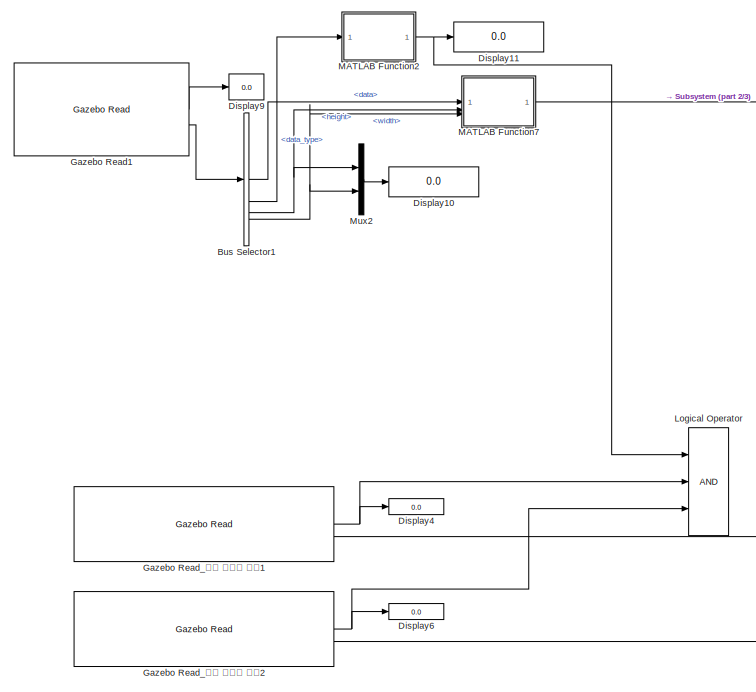
[diagram: root canvas - part 1/3, top center region]
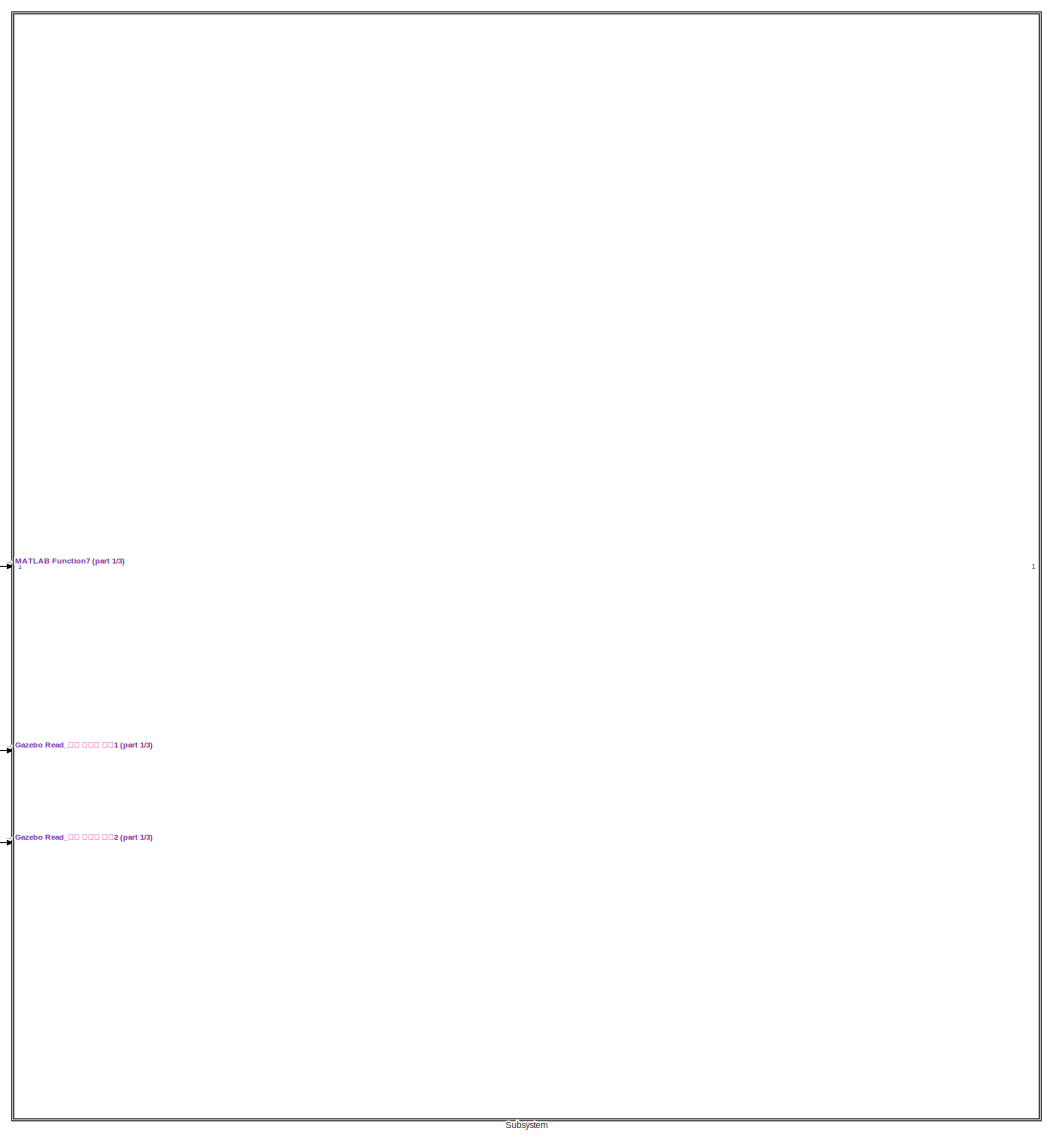
[diagram: root canvas - part 2/3, right side, full height]
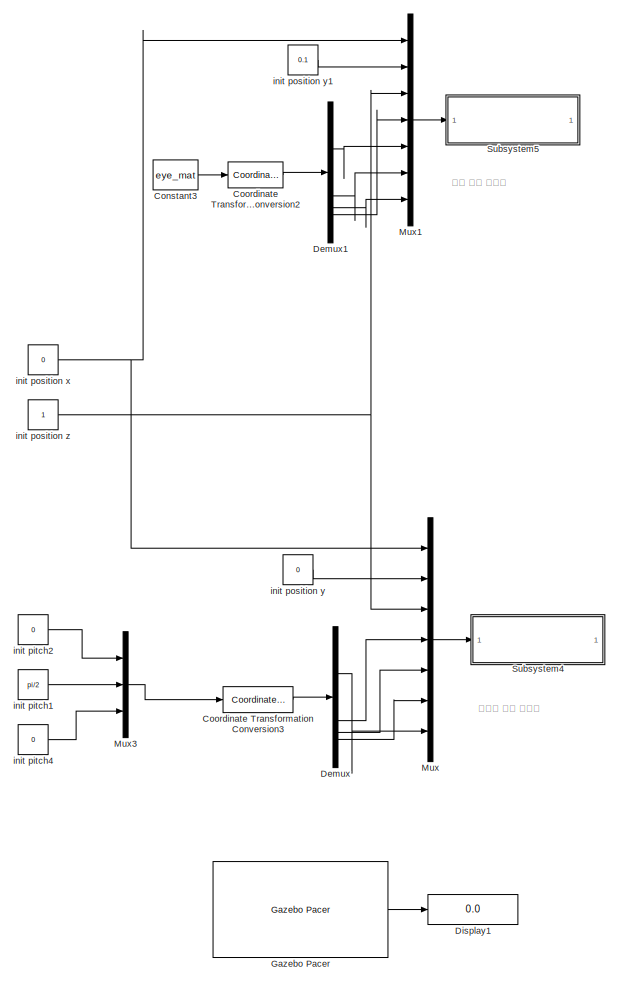
[diagram: root canvas - part 3/3, left side, full height]
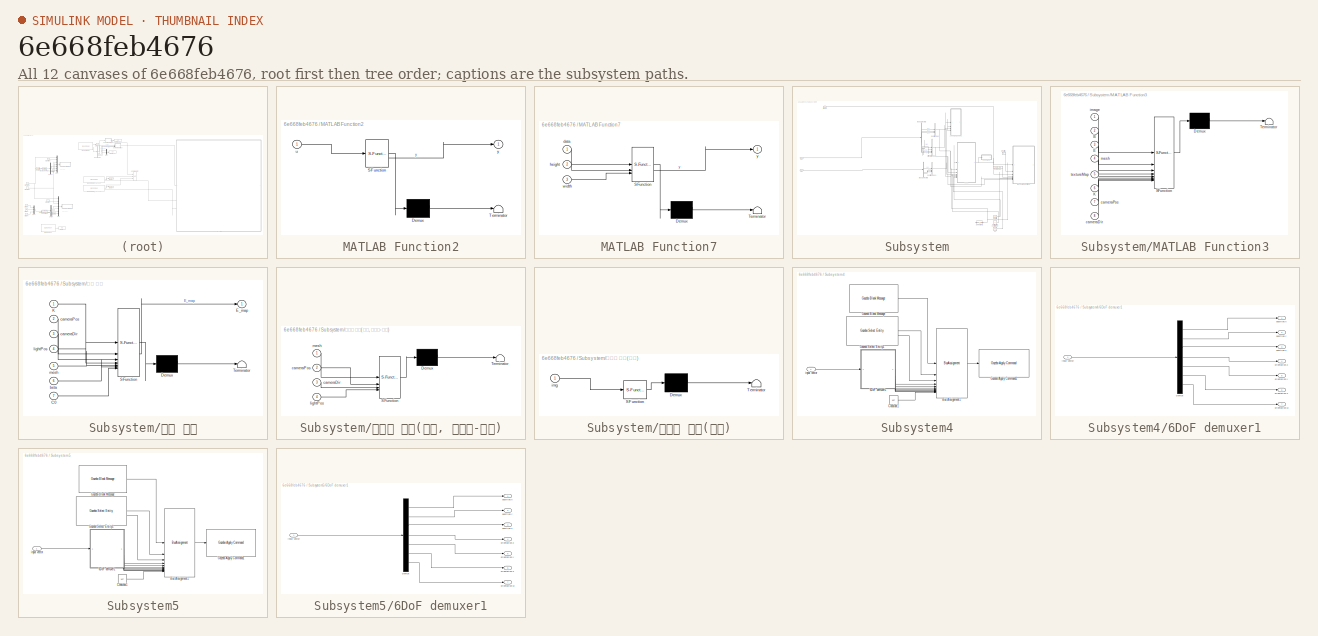
[diagram: thumbnail index - all 12 canvases of the model, root first then tree order]
MODEL slx_6e668feb4676
KIND model
CONFIG AbsTol = auto
CONFIG EnableMultiTasking = off
CONFIG FixedStep = auto
CONFIG MaxStep = auto
CONFIG MinStep = auto
CONFIG RelTol = 1e-3
CONFIG SampleTimeConstraint = Unconstrained
CONFIG SolverName = VariableStepAuto
CONFIG StartTime = 0.0
CONFIG StopTime = 2
BLOCK [BusSelector] Bus Selector1
  OutputSignals = data,data_type,height,width
BLOCK [Constant] Constant3
  Value = eye_mat
BLOCK [Reference] Coordinate Transformation Conversion2  REF=robotcorelib/Coordinate Transformation Conversion
  SourceBlock = robotcorelib/Coordinate Transformation Conversion
  SourceType = robotics.slcore.internal.block.CoordinateTransformationConversion
BLOCK [Reference] Coordinate Transformation Conversion3  REF=robotcorelib/Coordinate Transformation Conversion
  SourceBlock = robotcorelib/Coordinate Transformation Conversion
  SourceType = robotics.slcore.internal.block.CoordinateTransformationConversion
BLOCK [Demux] Demux
BLOCK [Demux] Demux1
BLOCK [Display] Display1
  Decimation = 1
BLOCK [Display] Display10
  Decimation = 1
BLOCK [Display] Display11
  Decimation = 1
BLOCK [Display] Display4
  Decimation = 1
BLOCK [Display] Display6
  Decimation = 1
BLOCK [Display] Display9
  Decimation = 1
BLOCK [Reference] Gazebo Pacer  REF=robotgazebolib/Gazebo Pacer
  SourceBlock = robotgazebolib/Gazebo Pacer
  SourceType = Gazebo Pacer
BLOCK [Reference] Gazebo Read1  REF=robotgazebolib/Gazebo Read
  SourceBlock = robotgazebolib/Gazebo Read
  SourceType = Gazebo Read
BLOCK [Reference] Gazebo Read_현재 카메라 자세1  REF=robotgazebolib/Gazebo Read
  SourceBlock = robotgazebolib/Gazebo Read
  SourceType = Gazebo Read
BLOCK [Reference] Gazebo Read_현재 카메라 자세2  REF=robotgazebolib/Gazebo Read
  SourceBlock = robotgazebolib/Gazebo Read
  SourceType = Gazebo Read
BLOCK [Logic] Logical Operator
  AllPortsSameDT = off
  Inputs = 3
  OutDataTypeStr = boolean
BLOCK [SubSystem] MATLAB Function2
  ErrorFcn = Stateflow.Translate.translate
  PermitHierarchicalResolution = ExplicitOnly
  SFBlockType = MATLAB Function
  TreatAsAtomicUnit = on
BLOCK [Demux] MATLAB Function2/ Demux 
  Outputs = 1
BLOCK [S-Function] MATLAB Function2/ SFunction 
  EnableBusSupport = on
  FunctionName = sf_sfun
  PortCounts = [1 2]
  SFcnIsStateOwnerBlock = off
  SFunctionDeploymentMode = off
  Tag = Stateflow S-Function 6
BLOCK [Terminator] MATLAB Function2/ Terminator 
BLOCK [Inport] MATLAB Function2/u
BLOCK [Outport] MATLAB Function2/y
BLOCK [SubSystem] MATLAB Function7
  ErrorFcn = Stateflow.Translate.translate
  PermitHierarchicalResolution = ExplicitOnly
  SFBlockType = MATLAB Function
  TreatAsAtomicUnit = on
BLOCK [Demux] MATLAB Function7/ Demux 
  Outputs = 1
BLOCK [S-Function] MATLAB Function7/ SFunction 
  EnableBusSupport = on
  FunctionName = sf_sfun
  PortCounts = [3 2]
  SFcnIsStateOwnerBlock = off
  SFunctionDeploymentMode = off
  Tag = Stateflow S-Function 15
BLOCK [Terminator] MATLAB Function7/ Terminator 
BLOCK [Inport] MATLAB Function7/data
BLOCK [Inport] MATLAB Function7/height
  Port = 2
BLOCK [Inport] MATLAB Function7/width
  Port = 3
BLOCK [Outport] MATLAB Function7/y
BLOCK [Mux] Mux
  DisplayOption = bar
  Inputs = 7
BLOCK [Mux] Mux1
  DisplayOption = bar
  Inputs = 7
BLOCK [Mux] Mux2
  DisplayOption = bar
  Inputs = 2
BLOCK [Mux] Mux3
  DisplayOption = bar
  Inputs = 3
BLOCK [SubSystem] Subsystem
BLOCK [BusSelector] Subsystem/Bus Selector2
  OutputSignals = position.x,position.y,position.z,orientation.x,orientation.y,orientation.z,orientation.w
BLOCK [BusSelector] Subsystem/Bus Selector3
  OutputSignals = position.x,position.y,position.z
BLOCK [Constant] Subsystem/C0
  Value = 24000
BLOCK [Constant] Subsystem/Constant1
  OutDataTypeStr = Bus: slBus1
  Value = mesh_data
BLOCK [Inport] Subsystem/In2
  Port = 2
BLOCK [Inport] Subsystem/In3
  Port = 3
BLOCK [Constant] Subsystem/K matrix
  Value = K
BLOCK [Constant] Subsystem/K matrix1
  Value = B
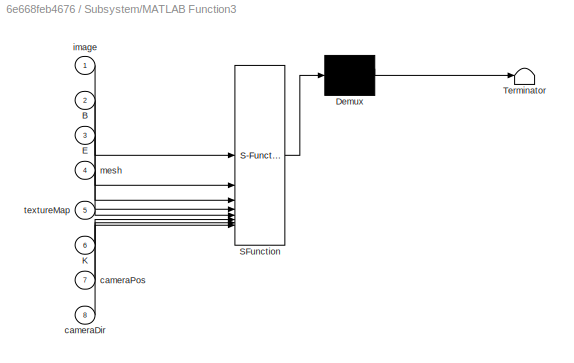
BLOCK [SubSystem] Subsystem/MATLAB Function3
  ErrorFcn = Stateflow.Translate.translate
  PermitHierarchicalResolution = ExplicitOnly
  SFBlockType = MATLAB Function
  TreatAsAtomicUnit = on
BLOCK [Demux] Subsystem/MATLAB Function3/ Demux 
  Outputs = 1
BLOCK [S-Function] Subsystem/MATLAB Function3/ SFunction 
  EnableBusSupport = on
  FunctionName = sf_sfun
  PortCounts = [8 1]
  SFcnIsStateOwnerBlock = off
  SFunctionDeploymentMode = off
  Tag = Stateflow S-Function 13
BLOCK [Terminator] Subsystem/MATLAB Function3/ Terminator 
BLOCK [Inport] Subsystem/MATLAB Function3/B
  Port = 2
BLOCK [Inport] Subsystem/MATLAB Function3/E
  Port = 3
BLOCK [Inport] Subsystem/MATLAB Function3/K
  Port = 6
BLOCK [Inport] Subsystem/MATLAB Function3/cameraDir
  Port = 8
BLOCK [Inport] Subsystem/MATLAB Function3/cameraPos
  Port = 7
BLOCK [Inport] Subsystem/MATLAB Function3/image
BLOCK [Inport] Subsystem/MATLAB Function3/mesh
  Port = 4
BLOCK [Inport] Subsystem/MATLAB Function3/textureMap
  Port = 5
BLOCK [Constant] Subsystem/extinction coefficient
  Value = 5
BLOCK [Inport] Subsystem/image
BLOCK [BusCreator] Subsystem/oritentation bus
  DisplayOption = bar
  InheritFromInputs = on
  Inputs = 4
BLOCK [BusCreator] Subsystem/position bus
  DisplayOption = bar
  InheritFromInputs = on
  Inputs = 3
BLOCK [BusCreator] Subsystem/position bus1
  DisplayOption = bar
  InheritFromInputs = on
  Inputs = 3
BLOCK [Constant] Subsystem/texture map
  Value = texture_map
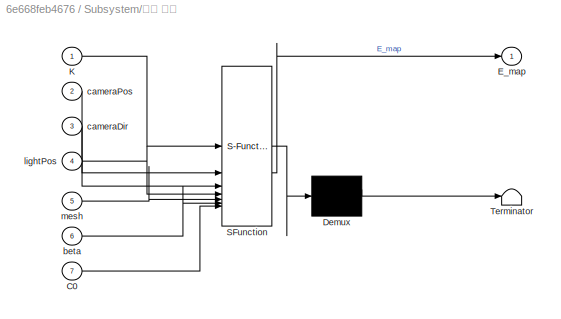
BLOCK [SubSystem] Subsystem/계산 함수
  ErrorFcn = Stateflow.Translate.translate
  PermitHierarchicalResolution = ExplicitOnly
  SFBlockType = MATLAB Function
  TreatAsAtomicUnit = on
BLOCK [Demux] Subsystem/계산 함수/ Demux 
  Outputs = 1
BLOCK [S-Function] Subsystem/계산 함수/ SFunction 
  EnableBusSupport = on
  FunctionName = sf_sfun
  PortCounts = [7 2]
  SFcnIsStateOwnerBlock = off
  SFunctionDeploymentMode = off
  Tag = Stateflow S-Function 3
BLOCK [Terminator] Subsystem/계산 함수/ Terminator 
BLOCK [Inport] Subsystem/계산 함수/C0
  Port = 7
BLOCK [Outport] Subsystem/계산 함수/E_map
BLOCK [Inport] Subsystem/계산 함수/K
BLOCK [Inport] Subsystem/계산 함수/beta
  Port = 6
BLOCK [Inport] Subsystem/계산 함수/cameraDir
  Port = 3
BLOCK [Inport] Subsystem/계산 함수/cameraPos
  Port = 2
BLOCK [Inport] Subsystem/계산 함수/lightPos
  Port = 4
BLOCK [Inport] Subsystem/계산 함수/mesh
  Port = 5
BLOCK [SubSystem] Subsystem/시각화 함수(물체, 카메라-조명)
  ErrorFcn = Stateflow.Translate.translate
  PermitHierarchicalResolution = ExplicitOnly
  SFBlockType = MATLAB Function
  TreatAsAtomicUnit = on
BLOCK [Demux] Subsystem/시각화 함수(물체, 카메라-조명)/ Demux 
  Outputs = 1
BLOCK [S-Function] Subsystem/시각화 함수(물체, 카메라-조명)/ SFunction 
  EnableBusSupport = on
  FunctionName = sf_sfun
  PortCounts = [4 1]
  SFcnIsStateOwnerBlock = off
  SFunctionDeploymentMode = off
  Tag = Stateflow S-Function 1
BLOCK [Terminator] Subsystem/시각화 함수(물체, 카메라-조명)/ Terminator 
BLOCK [Inport] Subsystem/시각화 함수(물체, 카메라-조명)/cameraDir
  Port = 3
BLOCK [Inport] Subsystem/시각화 함수(물체, 카메라-조명)/cameraPos
  Port = 2
BLOCK [Inport] Subsystem/시각화 함수(물체, 카메라-조명)/lightPos
  Port = 4
BLOCK [Inport] Subsystem/시각화 함수(물체, 카메라-조명)/mesh
BLOCK [SubSystem] Subsystem/시각화 함수(행렬)
  Commented = on
  ErrorFcn = Stateflow.Translate.translate
  PermitHierarchicalResolution = ExplicitOnly
  SFBlockType = MATLAB Function
  TreatAsAtomicUnit = on
BLOCK [Demux] Subsystem/시각화 함수(행렬)/ Demux 
  Outputs = 1
BLOCK [S-Function] Subsystem/시각화 함수(행렬)/ SFunction 
  EnableBusSupport = on
  FunctionName = sf_sfun
  PortCounts = [1 1]
  SFcnIsStateOwnerBlock = off
  SFunctionDeploymentMode = off
  Tag = Stateflow S-Function 2
BLOCK [Terminator] Subsystem/시각화 함수(행렬)/ Terminator 
BLOCK [Inport] Subsystem/시각화 함수(행렬)/img
BLOCK [SubSystem] Subsystem4
BLOCK [SubSystem] Subsystem4/6DoF demuxer1
BLOCK [Demux] Subsystem4/6DoF demuxer1/Demux
  Outputs = 7
BLOCK [Inport] Subsystem4/6DoF demuxer1/input vector
BLOCK [Outport] Subsystem4/6DoF demuxer1/orientation.w
  Port = 7
BLOCK [Outport] Subsystem4/6DoF demuxer1/orientation.x
  Port = 4
BLOCK [Outport] Subsystem4/6DoF demuxer1/orientation.y
  Port = 5
BLOCK [Outport] Subsystem4/6DoF demuxer1/orientation.z
  Port = 6
BLOCK [Outport] Subsystem4/6DoF demuxer1/position.x
BLOCK [Outport] Subsystem4/6DoF demuxer1/position.y
  Port = 2
BLOCK [Outport] Subsystem4/6DoF demuxer1/position.z
  Port = 3
BLOCK [BusAssignment] Subsystem4/Bus Assignment1
  AssignedSignals = model_name,link_name,world_pose.position.x,world_pose.position.y,world_pose.position.z,world_pose.orientation.x,world_pose.orientation.y,world_pose.orientation.z,world_pose.orientation.w,duration.nano_seconds
BLOCK [Constant] Subsystem4/Constant1
  Value = 1e7
BLOCK [Reference] Subsystem4/Gazebo Apply Command1  REF=robotgazebolib/Gazebo Apply Command
  SourceBlock = robotgazebolib/Gazebo Apply Command
  SourceType = Gazebo Apply Command
BLOCK [Reference] Subsystem4/Gazebo Blank Message  REF=robotgazebolib/Gazebo Blank Message
  SourceBlock = robotgazebolib/Gazebo Blank Message
  SourceType = Gazebo Blank Message
BLOCK [Reference] Subsystem4/Gazebo Select Entity1  REF=robotgazebolib/Gazebo Select Entity
  SourceBlock = robotgazebolib/Gazebo Select Entity
  SourceType = Gazebo Select Entity
BLOCK [Inport] Subsystem4/input vector
BLOCK [SubSystem] Subsystem5
BLOCK [SubSystem] Subsystem5/6DoF demuxer1
BLOCK [Demux] Subsystem5/6DoF demuxer1/Demux
  Outputs = 7
BLOCK [Inport] Subsystem5/6DoF demuxer1/input vector
BLOCK [Outport] Subsystem5/6DoF demuxer1/orientation.w
  Port = 7
BLOCK [Outport] Subsystem5/6DoF demuxer1/orientation.x
  Port = 4
BLOCK [Outport] Subsystem5/6DoF demuxer1/orientation.y
  Port = 5
BLOCK [Outport] Subsystem5/6DoF demuxer1/orientation.z
  Port = 6
BLOCK [Outport] Subsystem5/6DoF demuxer1/position.x
BLOCK [Outport] Subsystem5/6DoF demuxer1/position.y
  Port = 2
BLOCK [Outport] Subsystem5/6DoF demuxer1/position.z
  Port = 3
BLOCK [BusAssignment] Subsystem5/Bus Assignment1
  AssignedSignals = model_name,link_name,world_pose.position.x,world_pose.position.y,world_pose.position.z,world_pose.orientation.x,world_pose.orientation.y,world_pose.orientation.z,world_pose.orientation.w,duration.nano_seconds
BLOCK [Constant] Subsystem5/Constant1
  Value = 1e7
BLOCK [Reference] Subsystem5/Gazebo Apply Command1  REF=robotgazebolib/Gazebo Apply Command
  SourceBlock = robotgazebolib/Gazebo Apply Command
  SourceType = Gazebo Apply Command
BLOCK [Reference] Subsystem5/Gazebo Blank Message  REF=robotgazebolib/Gazebo Blank Message
  SourceBlock = robotgazebolib/Gazebo Blank Message
  SourceType = Gazebo Blank Message
BLOCK [Reference] Subsystem5/Gazebo Select Entity1  REF=robotgazebolib/Gazebo Select Entity
  SourceBlock = robotgazebolib/Gazebo Select Entity
  SourceType = Gazebo Select Entity
BLOCK [Inport] Subsystem5/input vector
BLOCK [Constant] init pitch1
  Value = pi/2
BLOCK [Constant] init pitch2
  Value = 0
BLOCK [Constant] init pitch4
  Value = 0
BLOCK [Constant] init position x
  Value = 0
BLOCK [Constant] init position y
  Value = 0
BLOCK [Constant] init position y1
  Value = 0.1
BLOCK [Constant] init position z
ANNOTATION (root): 조명 자세 초기화
ANNOTATION (root): 카메라 자세 초기화
LINE Bus Selector1:1 -> MATLAB Function7:1
LINE Bus Selector1:2 -> MATLAB Function2:1
NET Bus Selector1:3 -> MATLAB Function7:2, Mux2:1
NET Bus Selector1:4 -> MATLAB Function7:3, Mux2:2
LINE Constant3:1 -> Coordinate Transformation Conversion2:1
LINE Coordinate Transformation Conversion2:1 -> Demux1:1
LINE Coordinate Transformation Conversion3:1 -> Demux:1
LINE Demux1:1 -> Mux1:5
LINE Demux1:2 -> Mux1:6
LINE Demux1:3 -> Mux1:7
LINE Demux1:4 -> Mux1:4
LINE Demux:1 -> Mux:7
LINE Demux:2 -> Mux:4
LINE Demux:3 -> Mux:5
LINE Demux:4 -> Mux:6
LINE Gazebo Pacer:1 -> Display1:1
LINE Gazebo Read1:1 -> Display9:1
LINE Gazebo Read1:2 -> Bus Selector1:1
NET Gazebo Read_현재 카메라 자세1:1 -> Display4:1, Logical Operator:2
LINE Gazebo Read_현재 카메라 자세1:2 -> Subsystem:2
NET Gazebo Read_현재 카메라 자세2:1 -> Display6:1, Logical Operator:3
LINE Gazebo Read_현재 카메라 자세2:2 -> Subsystem:3
NET MATLAB Function2:1 -> Display11:1, Logical Operator:1
LINE MATLAB Function7:1 -> Subsystem:1
LINE Mux1:1 -> Subsystem5:1
LINE Mux2:1 -> Display10:1
LINE Mux3:1 -> Coordinate Transformation Conversion3:1
LINE Mux:1 -> Subsystem4:1
LINE Subsystem/Bus Selector2:1 -> Subsystem/position bus:1
LINE Subsystem/Bus Selector2:2 -> Subsystem/position bus:2
LINE Subsystem/Bus Selector2:3 -> Subsystem/position bus:3
LINE Subsystem/Bus Selector2:4 -> Subsystem/oritentation bus:2
LINE Subsystem/Bus Selector2:5 -> Subsystem/oritentation bus:3
LINE Subsystem/Bus Selector2:6 -> Subsystem/oritentation bus:4
LINE Subsystem/Bus Selector2:7 -> Subsystem/oritentation bus:1
LINE Subsystem/Bus Selector3:1 -> Subsystem/position bus1:1
LINE Subsystem/Bus Selector3:2 -> Subsystem/position bus1:2
LINE Subsystem/Bus Selector3:3 -> Subsystem/position bus1:3
LINE Subsystem/C0:1 -> Subsystem/계산 함수:7
NET Subsystem/Constant1:1 -> Subsystem/MATLAB Function3:4, Subsystem/계산 함수:5, Subsystem/시각화 함수(물체, 카메라-조명):1
LINE Subsystem/In2:1 -> Subsystem/Bus Selector2:1
LINE Subsystem/In3:1 -> Subsystem/Bus Selector3:1
LINE Subsystem/K matrix1:1 -> Subsystem/MATLAB Function3:2
NET Subsystem/K matrix:1 -> Subsystem/MATLAB Function3:6, Subsystem/계산 함수:1
LINE Subsystem/extinction coefficient:1 -> Subsystem/계산 함수:6
LINE Subsystem/image:1 -> Subsystem/MATLAB Function3:1
NET Subsystem/oritentation bus:1 -> Subsystem/MATLAB Function3:8, Subsystem/계산 함수:3, Subsystem/시각화 함수(물체, 카메라-조명):3
NET Subsystem/position bus1:1 -> Subsystem/계산 함수:4, Subsystem/시각화 함수(물체, 카메라-조명):4
NET Subsystem/position bus:1 -> Subsystem/MATLAB Function3:7, Subsystem/계산 함수:2, Subsystem/시각화 함수(물체, 카메라-조명):2
LINE Subsystem/texture map:1 -> Subsystem/MATLAB Function3:5
NET Subsystem/계산 함수:1 -> Subsystem/MATLAB Function3:3, Subsystem/시각화 함수(행렬):1
LINE Subsystem4/6DoF demuxer1/Demux:1 -> Subsystem4/6DoF demuxer1/position.x:1
LINE Subsystem4/6DoF demuxer1/Demux:2 -> Subsystem4/6DoF demuxer1/position.y:1
LINE Subsystem4/6DoF demuxer1/Demux:3 -> Subsystem4/6DoF demuxer1/position.z:1
LINE Subsystem4/6DoF demuxer1/Demux:4 -> Subsystem4/6DoF demuxer1/orientation.x:1
LINE Subsystem4/6DoF demuxer1/Demux:5 -> Subsystem4/6DoF demuxer1/orientation.y:1
LINE Subsystem4/6DoF demuxer1/Demux:6 -> Subsystem4/6DoF demuxer1/orientation.z:1
LINE Subsystem4/6DoF demuxer1/Demux:7 -> Subsystem4/6DoF demuxer1/orientation.w:1
LINE Subsystem4/6DoF demuxer1/input vector:1 -> Subsystem4/6DoF demuxer1/Demux:1
LINE Subsystem4/6DoF demuxer1:1 -> Subsystem4/Bus Assignment1:4
LINE Subsystem4/6DoF demuxer1:2 -> Subsystem4/Bus Assignment1:5
LINE Subsystem4/6DoF demuxer1:3 -> Subsystem4/Bus Assignment1:6
LINE Subsystem4/6DoF demuxer1:4 -> Subsystem4/Bus Assignment1:7
LINE Subsystem4/6DoF demuxer1:5 -> Subsystem4/Bus Assignment1:8
LINE Subsystem4/6DoF demuxer1:6 -> Subsystem4/Bus Assignment1:9
LINE Subsystem4/6DoF demuxer1:7 -> Subsystem4/Bus Assignment1:10
LINE Subsystem4/Bus Assignment1:1 -> Subsystem4/Gazebo Apply Command1:1
LINE Subsystem4/Constant1:1 -> Subsystem4/Bus Assignment1:11
LINE Subsystem4/Gazebo Blank Message:1 -> Subsystem4/Bus Assignment1:1
LINE Subsystem4/Gazebo Select Entity1:1 -> Subsystem4/Bus Assignment1:2
LINE Subsystem4/Gazebo Select Entity1:2 -> Subsystem4/Bus Assignment1:3
LINE Subsystem4/input vector:1 -> Subsystem4/6DoF demuxer1:1
LINE Subsystem5/6DoF demuxer1/Demux:1 -> Subsystem5/6DoF demuxer1/position.x:1
LINE Subsystem5/6DoF demuxer1/Demux:2 -> Subsystem5/6DoF demuxer1/position.y:1
LINE Subsystem5/6DoF demuxer1/Demux:3 -> Subsystem5/6DoF demuxer1/position.z:1
LINE Subsystem5/6DoF demuxer1/Demux:4 -> Subsystem5/6DoF demuxer1/orientation.x:1
LINE Subsystem5/6DoF demuxer1/Demux:5 -> Subsystem5/6DoF demuxer1/orientation.y:1
LINE Subsystem5/6DoF demuxer1/Demux:6 -> Subsystem5/6DoF demuxer1/orientation.z:1
LINE Subsystem5/6DoF demuxer1/Demux:7 -> Subsystem5/6DoF demuxer1/orientation.w:1
LINE Subsystem5/6DoF demuxer1/input vector:1 -> Subsystem5/6DoF demuxer1/Demux:1
LINE Subsystem5/6DoF demuxer1:1 -> Subsystem5/Bus Assignment1:4
LINE Subsystem5/6DoF demuxer1:2 -> Subsystem5/Bus Assignment1:5
LINE Subsystem5/6DoF demuxer1:3 -> Subsystem5/Bus Assignment1:6
LINE Subsystem5/6DoF demuxer1:4 -> Subsystem5/Bus Assignment1:7
LINE Subsystem5/6DoF demuxer1:5 -> Subsystem5/Bus Assignment1:8
LINE Subsystem5/6DoF demuxer1:6 -> Subsystem5/Bus Assignment1:9
LINE Subsystem5/6DoF demuxer1:7 -> Subsystem5/Bus Assignment1:10
LINE Subsystem5/Bus Assignment1:1 -> Subsystem5/Gazebo Apply Command1:1
LINE Subsystem5/Constant1:1 -> Subsystem5/Bus Assignment1:11
LINE Subsystem5/Gazebo Blank Message:1 -> Subsystem5/Bus Assignment1:1
LINE Subsystem5/Gazebo Select Entity1:1 -> Subsystem5/Bus Assignment1:2
LINE Subsystem5/Gazebo Select Entity1:2 -> Subsystem5/Bus Assignment1:3
LINE Subsystem5/input vector:1 -> Subsystem5/6DoF demuxer1:1
LINE init pitch1:1 -> Mux3:2
LINE init pitch2:1 -> Mux3:1
LINE init pitch4:1 -> Mux3:3
NET init position x:1 -> Mux1:1, Mux:1
LINE init position y1:1 -> Mux1:2
LINE init position y:1 -> Mux:2
NET init position z:1 -> Mux1:3, Mux:3
note: NET lines group one-source signal fan-out (src -> all destinations, sorted); 1:1 wires keep LINE
CHART Subsystem/시각화 함수(물체, 카메라-조명) states=1 transitions=1
  STATE_LABEL 'eML_blk_kernel()'
  STATE_LABEL "SCRIPT:\nfunction viz_scene(mesh, cameraPos, cameraDir, lightPos)\n\n    persistent figHandle; % Figure 핸들을 저장할 persistent 변수\n\n    if isempty(figHandle)\n        % Figure가 없으면 (처음 실행) figHandle 초기화\n        figHandle = figure;\n        set(figHandle, 'Name', 'Scene Visualization'); % (선택 사항) 창 제목 설정\n    elseif ~ishandle(figHandle) || ~strcmp(get(figHandle, 'Type'), 'figure')\n        % Figure 핸들이 유효하지 않으...<+2370ch>"
CHART Subsystem/시각화 함수(행렬) states=1 transitions=1
  STATE_LABEL 'eML_blk_kernel()'
  STATE_LABEL "SCRIPT:\nfunction viz_mat(img)\n    figure;\n    imagesc(img);\n    colorbar;\n    title('E\\_map (Scattering Lighting)');\n    xlabel('Pixel X');\n    ylabel('Pixel Y');\n    axis image; % x, y 축 비율을 데이터에 맞게\nend"
CHART Subsystem/계산 함수 states=1 transitions=1
  STATE_LABEL 'eML_blk_kernel()'
  STATE_LABEL 'SCRIPT:\nfunction E_map = computeScatteringLighting(K, cameraPos, cameraDir, lightPos, mesh, beta, C0)\n    % 입력:\n    %   K: 3x3 Intrinsic Matrix (카메라 내부 파라미터 행렬)\n    %   R_link: 3x3 Rotation Matrix (월드 좌표계 -> 링크 좌표계 회전 행렬)\n    %   T: 3x1 Translation Vector (월드 좌표계 -> 링크 좌표계 이동 벡터)\n    %   lightPos: 1x3 광원 위치 (월드 좌표계)\n    %   mesh: 메쉬 데이터 (구조체)\n    %       mesh.v:  정점(Vertices) 좌표 (Nx3 행렬, N: 정점 개수)...<+3608ch>'
CHART MATLAB Function2 states=1 transitions=1
  STATE_LABEL 'eML_blk_kernel()'
  STATE_LABEL 'SCRIPT:\nfunction y = convertUInt8VarSizeToString(u)\n\ny = convertCharsToStrings(char(u));\n'
CHART Subsystem/MATLAB Function3 states=1 transitions=1
  STATE_LABEL 'eML_blk_kernel()'
  STATE_LABEL 'SCRIPT:\nfunction processReflectance(image, B, E, mesh, textureMap, K, cameraPos, cameraDir)\n\n    image = double(image);\n    B = double(B);\n    E = double(E);\n    textureMap = double(textureMap);\n    texture_size = size(textureMap,1);\n    mesh.uv_coords = mesh.uv_coords * texture_size; % 원래 uv_coords는 정규화되어 있기에 텍스처 맵 크기만큼 곱해줌\n\n    % 이미지<->텍스처 맵 변환 위한 준비\n    [set_idx, set_img_patch, set_uv_patch] = ...<+3608ch>'
CHART MATLAB Function7 states=1 transitions=1
  STATE_LABEL 'eML_blk_kernel()'
  STATE_LABEL "SCRIPT:\nfunction y  = plotImage(data, height, width)\n\ncoder.extrinsic('imshow');\ncoder.extrinsic('helperPlotImage');\n\npersistent h\n\nif isempty(h)\n    h = newplot(figure());\nend\n\n\ny = zeros(height, width, 3, 'uint8');\nif ~isempty(data) && ~isscalar(data)\n    y(:) = helperPlotImage(data, height, width);\nend\nimshow(y, 'Parent', h);\n"
CHART  states=0 transitions=0
CHART  states=0 transitions=0
CHART  states=0 transitions=0
CHART  states=0 transitions=0
CHART  states=0 transitions=0
CHART  states=0 transitions=0
